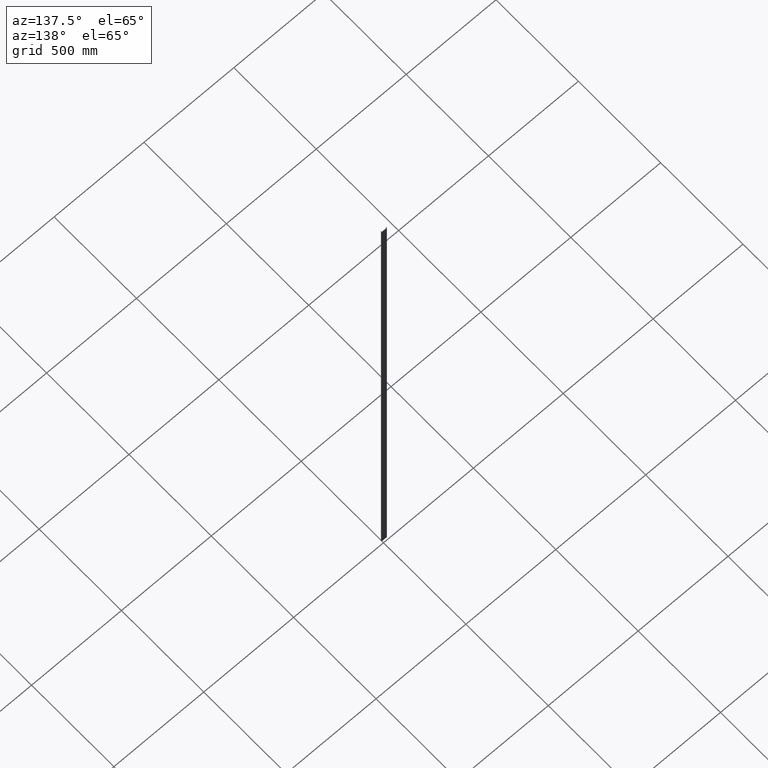
[diagram: clean part render]
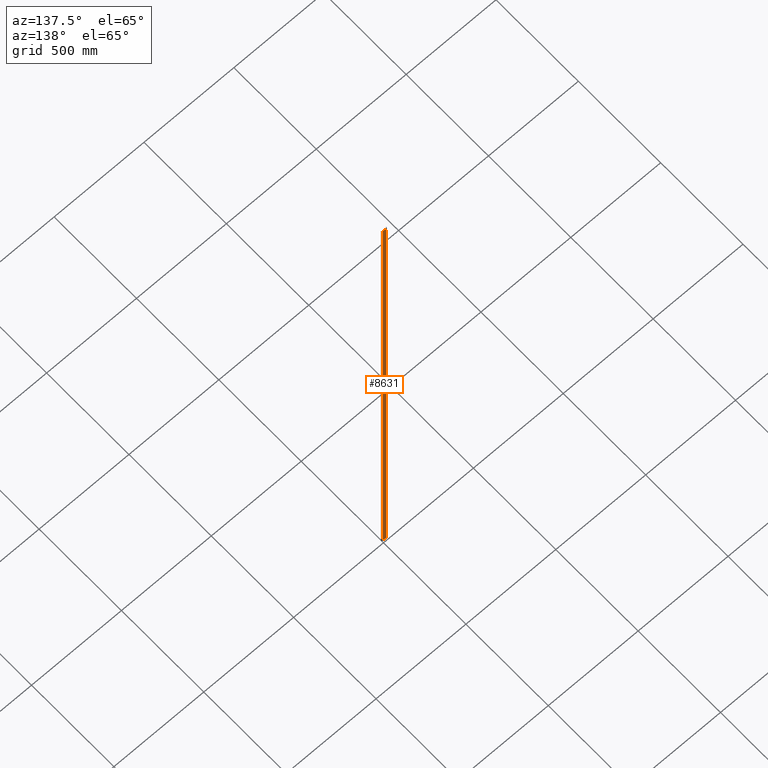
[diagram: same view with one face highlighted and labeled with its STEP entity id]
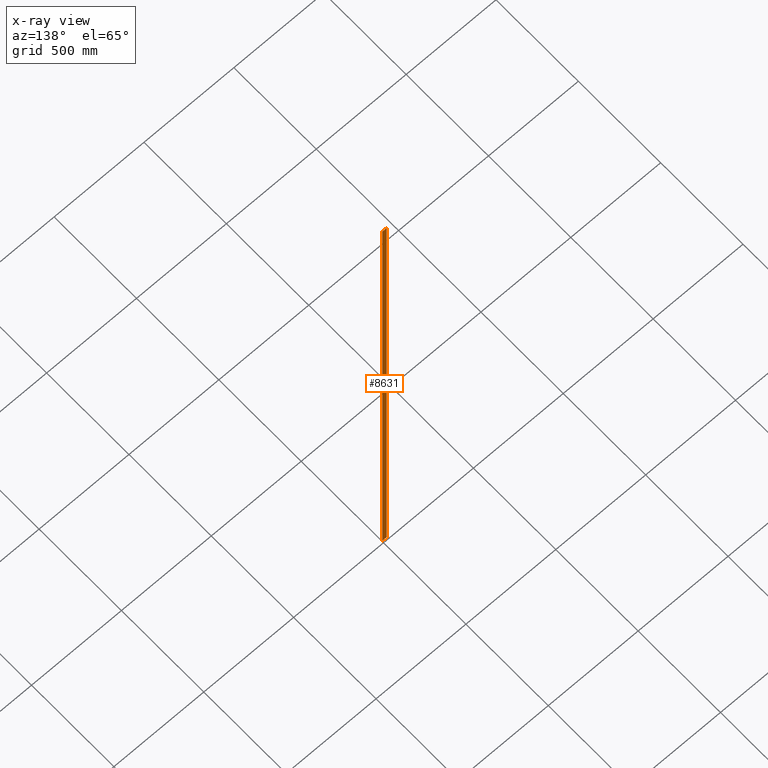
[diagram: x-ray of the same camera — body ghosted, the highlighted face saturated]
A machine part, auxiliary view. The second image highlights one B-rep face of the part: STEP entity #8631.
The next image is the same camera in x-ray: the body ghosted, the highlighted face saturated — about 0% of this face is hidden behind the body in this view.
In plain terms, the highlighted planar face has unit normal (0, -1, 0).
Its self-contained STEP definition (entity closure, byte-faithful):
#125 = VECTOR ( 'NONE', #5228, 1000.000000000000000 ) ;
#143 = VECTOR ( 'NONE', #11122, 1000.000000000000000 ) ;
#160 = EDGE_CURVE ( 'NONE', #7564, #6875, #15555, .T. ) ;
#596 = ORIENTED_EDGE ( 'NONE', *, *, #3273, .F. ) ;
#713 = CARTESIAN_POINT ( 'NONE',  ( -12.54999999999999893, 6.000000000000000000, -1500.000000000000000 ) ) ;
#787 = EDGE_CURVE ( 'NONE', #12139, #12732, #5611, .T. ) ;
#2712 = CARTESIAN_POINT ( 'NONE',  ( 12.54999999999999893, 6.000000000000000000, 1500.000000000000000 ) ) ;
#3273 = EDGE_CURVE ( 'NONE', #6875, #12732, #6042, .T. ) ;
#3924 = CARTESIAN_POINT ( 'NONE',  ( 12.54999999999999893, 6.000000000000000000, 1500.000000000000000 ) ) ;
#4638 = ORIENTED_EDGE ( 'NONE', *, *, #787, .T. ) ;
#4833 = ORIENTED_EDGE ( 'NONE', *, *, #7785, .T. ) ;
#4967 = VECTOR ( 'NONE', #17734, 1000.000000000000000 ) ;
#5228 = DIRECTION ( 'NONE',  ( -1.000000000000000000, -0.000000000000000000, -0.000000000000000000 ) ) ;
#5595 = PLANE ( 'NONE',  #16206 ) ;
#5611 = LINE ( 'NONE', #713, #4967 ) ;
#6042 = LINE ( 'NONE', #9600, #13110 ) ;
#6875 = VERTEX_POINT ( 'NONE', #14417 ) ;
#7564 = VERTEX_POINT ( 'NONE', #2712 ) ;
#7785 = EDGE_CURVE ( 'NONE', #7564, #12139, #12248, .T. ) ;
#8241 = DIRECTION ( 'NONE',  ( 0.000000000000000000, -1.000000000000000000, 0.000000000000000000 ) ) ;
#8255 = DIRECTION ( 'NONE',  ( -0.000000000000000000, -0.000000000000000000, -1.000000000000000000 ) ) ;
#8631 = ADVANCED_FACE ( 'NONE', ( #16009 ), #5595, .F. ) ;
#9342 = ORIENTED_EDGE ( 'NONE', *, *, #160, .F. ) ;
#9600 = CARTESIAN_POINT ( 'NONE',  ( -12.54999999999999893, 6.000000000000000000, 1500.000000000000000 ) ) ;
#9700 = EDGE_LOOP ( 'NONE', ( #4638, #596, #9342, #4833 ) ) ;
#10262 = CARTESIAN_POINT ( 'NONE',  ( -12.54999999999999893, 6.000000000000000000, -1500.000000000000000 ) ) ;
#11122 = DIRECTION ( 'NONE',  ( -0.000000000000000000, -0.000000000000000000, -1.000000000000000000 ) ) ;
#12139 = VERTEX_POINT ( 'NONE', #16374 ) ;
#12248 = LINE ( 'NONE', #3924, #143 ) ;
#12317 = CARTESIAN_POINT ( 'NONE',  ( -12.54999999999999893, 6.000000000000000000, 1500.000000000000000 ) ) ;
#12732 = VERTEX_POINT ( 'NONE', #10262 ) ;
#13110 = VECTOR ( 'NONE', #8255, 1000.000000000000000 ) ;
#14417 = CARTESIAN_POINT ( 'NONE',  ( -12.54999999999999893, 6.000000000000000000, 1500.000000000000000 ) ) ;
#15456 = DIRECTION ( 'NONE',  ( 0.000000000000000000, -0.000000000000000000, -1.000000000000000000 ) ) ;
#15555 = LINE ( 'NONE', #12317, #125 ) ;
#16009 = FACE_OUTER_BOUND ( 'NONE', #9700, .T. ) ;
#16206 = AXIS2_PLACEMENT_3D ( 'NONE', #18237, #8241, #15456 ) ;
#16374 = CARTESIAN_POINT ( 'NONE',  ( 12.54999999999999893, 6.000000000000000000, -1500.000000000000000 ) ) ;
#17734 = DIRECTION ( 'NONE',  ( -1.000000000000000000, -0.000000000000000000, -0.000000000000000000 ) ) ;
#18237 = CARTESIAN_POINT ( 'NONE',  ( -12.54999999999999893, 6.000000000000000000, 1500.000000000000000 ) ) ;